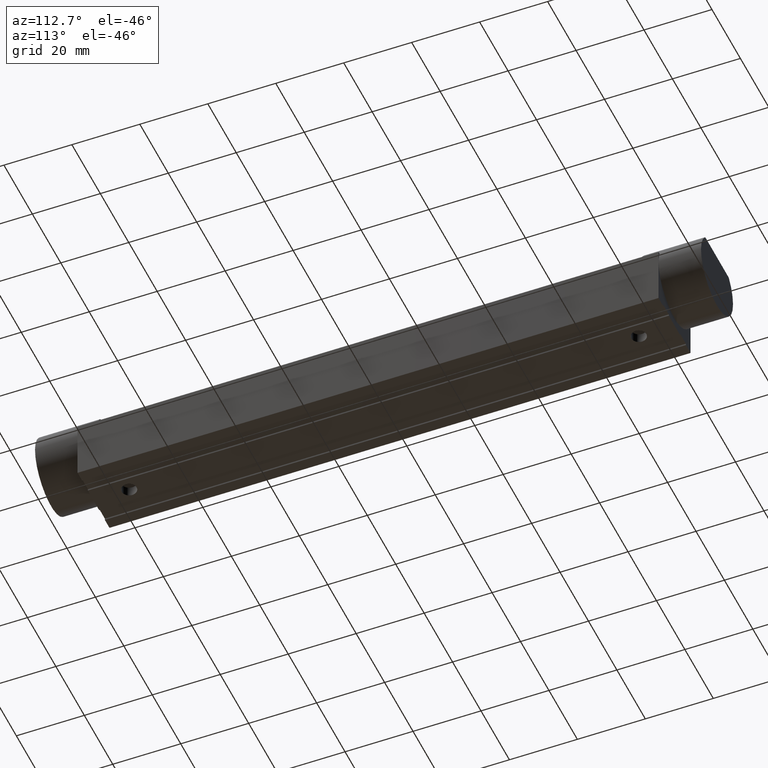
[diagram: clean part render]
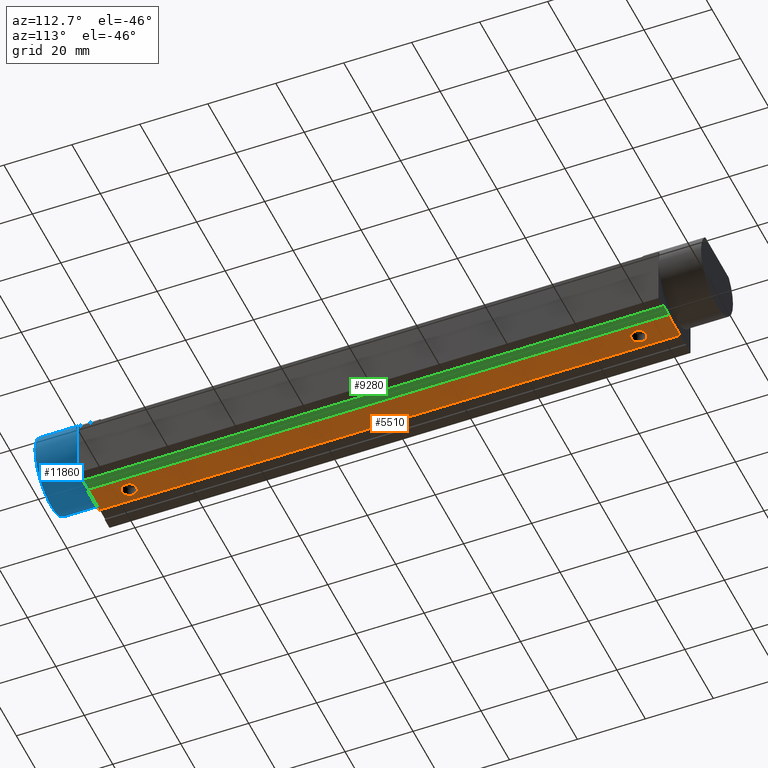
[diagram: same view with three faces highlighted in distinct colors, each labeled with its STEP entity id]
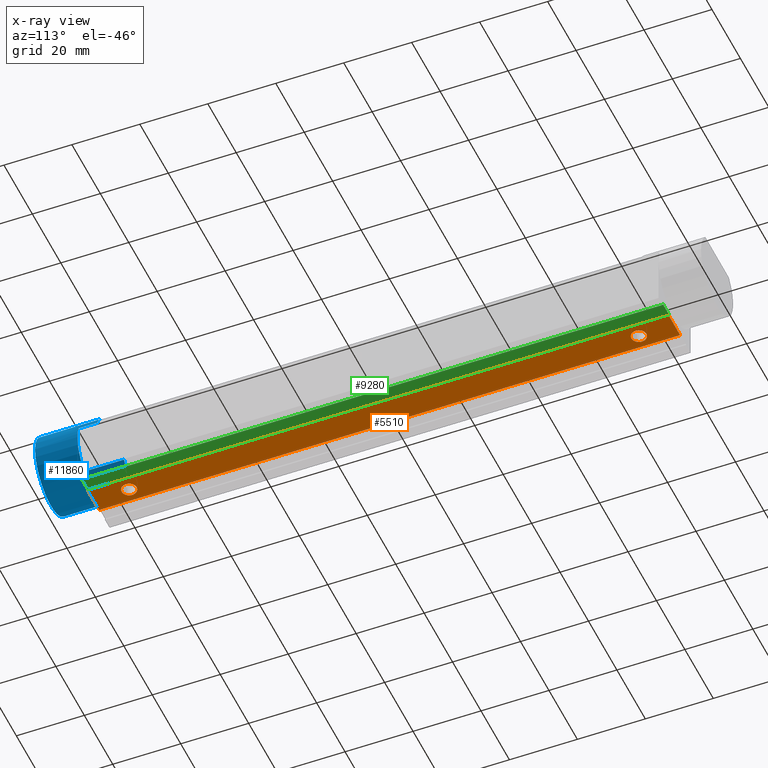
[diagram: x-ray of the same camera — body ghosted, the three highlighted faces saturated]
A machine part, auxiliary view with three faces highlighted in distinct colors.
The next image is the same camera in x-ray (body ghosted, the three faces saturated) — at least one of them is partly hidden behind the body in this view.
Their STEP definitions:

[orange] entity #5510 — the highlighted planar face has unit normal (-0, -0, 1).
#1150=CARTESIAN_POINT('',(183.5,-4.00000000000001,-4.));
#1160=VERTEX_POINT('',#1150);
#1190=CARTESIAN_POINT('',(183.5,-3.75,-4.));
#1200=DIRECTION('',(0.,1.,0.));
#1210=VECTOR('',#1200,1.);
#1220=LINE('',#1190,#1210);
#1230=CARTESIAN_POINT('',(183.5,4.,-4.));
#1240=VERTEX_POINT('',#1230);
#1250=EDGE_CURVE('',#1160,#1240,#1220,.T.);
#4910=CARTESIAN_POINT('',(183.5,-4.00000000000001,-4.));
#4920=DIRECTION('',(-0.,-0.,-1.));
#4930=DIRECTION('',(0.,-1.,0.));
#4940=AXIS2_PLACEMENT_3D('',#4910,#4920,#4930);
#4950=PLANE('',#4940);
#4960=ORIENTED_EDGE('',*,*,#1250,.T.);
#4970=CARTESIAN_POINT('',(0.,-4.00000000000001,-4.));
#4980=DIRECTION('',(-1.,0.,0.));
#4990=VECTOR('',#4980,1.);
#5000=LINE('',#4970,#4990);
#5010=CARTESIAN_POINT('',(12.5,-4.00000000000001,-4.));
#5020=VERTEX_POINT('',#5010);
#5030=EDGE_CURVE('',#1160,#5020,#5000,.T.);
#5040=ORIENTED_EDGE('',*,*,#5030,.F.);
#5050=CARTESIAN_POINT('',(12.5,0.,-4.));
#5060=DIRECTION('',(0.,-1.,0.));
#5070=VECTOR('',#5060,1.);
#5080=LINE('',#5050,#5070);
#5090=CARTESIAN_POINT('',(12.5,4.,-4.));
#5100=VERTEX_POINT('',#5090);
#5110=EDGE_CURVE('',#5100,#5020,#5080,.T.);
#5120=ORIENTED_EDGE('',*,*,#5110,.T.);
#5130=CARTESIAN_POINT('',(0.,4.,-4.));
#5140=DIRECTION('',(-1.,0.,0.));
#5150=VECTOR('',#5140,1.);
#5160=LINE('',#5130,#5150);
#5170=EDGE_CURVE('',#1240,#5100,#5160,.T.);
#5180=ORIENTED_EDGE('',*,*,#5170,.T.);
#5190=EDGE_LOOP('',(#5180,#5120,#5040,#4960));
#5200=FACE_OUTER_BOUND('',#5190,.T.);
#5210=CARTESIAN_POINT('',(23.0000000000001,-3.46944695195361E-15,-4.));
#5220=DIRECTION('',(0.,0.,-1.));
#5230=DIRECTION('',(-1.,-2.3970724395316E-16,0.));
#5240=AXIS2_PLACEMENT_3D('',#5210,#5220,#5230);
#5250=CIRCLE('',#5240,2.2);
#5260=CARTESIAN_POINT('',(25.2000000000001,-2.67266871944424E-15,-4.));
#5270=VERTEX_POINT('',#5260);
#5280=CARTESIAN_POINT('',(20.8000000000001,-3.99680288865056E-15,-4.));
#5290=VERTEX_POINT('',#5280);
#5300=EDGE_CURVE('',#5270,#5290,#5250,.T.);
#5310=ORIENTED_EDGE('',*,*,#5300,.T.);
#5320=EDGE_CURVE('',#5290,#5270,#5250,.T.);
#5330=ORIENTED_EDGE('',*,*,#5320,.T.);
#5340=EDGE_LOOP('',(#5330,#5310));
#5350=FACE_BOUND('',#5340,.T.);
#5360=CARTESIAN_POINT('',(173.,-3.46944695195361E-15,-4.));
#5370=DIRECTION('',(0.,0.,-1.));
#5380=DIRECTION('',(1.,-3.78485122031329E-17,0.));
#5390=AXIS2_PLACEMENT_3D('',#5360,#5370,#5380);
#5400=CIRCLE('',#5390,2.2);
#5410=CARTESIAN_POINT('',(175.2,-3.5527136788005E-15,-4.));
#5420=VERTEX_POINT('',#5410);
#5430=CARTESIAN_POINT('',(170.8,-3.65560252091914E-15,-4.));
#5440=VERTEX_POINT('',#5430);
#5450=EDGE_CURVE('',#5420,#5440,#5400,.T.);
#5460=ORIENTED_EDGE('',*,*,#5450,.T.);
#5470=EDGE_CURVE('',#5440,#5420,#5400,.T.);
#5480=ORIENTED_EDGE('',*,*,#5470,.T.);
#5490=EDGE_LOOP('',(#5480,#5460));
#5500=FACE_BOUND('',#5490,.T.);
#5510=ADVANCED_FACE('',(#5200,#5350,#5500),#4950,.F.);

[blue] entity #11860 — the highlighted cylindrical surface (partial cylindrical patch) has radius 11.2492 mm, axis along (0, -1, 0).
#120=CARTESIAN_POINT('',(12.5,10.514041296652,-22.));
#130=VERTEX_POINT('',#120);
#160=CARTESIAN_POINT('',(13.7200045691454,10.514041296652,-22.));
#170=DIRECTION('',(-1.,0.,0.));
#180=VECTOR('',#170,1.);
#190=LINE('',#160,#180);
#200=CARTESIAN_POINT('',(18.0000000000001,10.514041296652,-22.));
#210=VERTEX_POINT('',#200);
#220=EDGE_CURVE('',#210,#130,#190,.T.);
#2440=CARTESIAN_POINT('',(12.5,0.,-18.));
#2450=DIRECTION('',(-1.,0.,0.));
#2460=DIRECTION('',(0.,0.,1.));
#2470=AXIS2_PLACEMENT_3D('',#2440,#2450,#2460);
#2480=CIRCLE('',#2470,11.2492250572074);
#2490=CARTESIAN_POINT('',(12.5,11.2492250572074,-18.));
#2500=VERTEX_POINT('',#2490);
#2510=EDGE_CURVE('',#2500,#130,#2480,.T.);
#3580=CARTESIAN_POINT('',(12.5,-11.2492250572074,-18.));
#3590=VERTEX_POINT('',#3580);
#6150=EDGE_CURVE('',#3590,#2500,#2480,.T.);
#6710=CARTESIAN_POINT('',(18.0000000000001,0.,-18.));
#6720=DIRECTION('',(1.,0.,0.));
#6730=DIRECTION('',(0.,4.7372778934549E-16,1.));
#6740=AXIS2_PLACEMENT_3D('',#6710,#6720,#6730);
#6750=CIRCLE('',#6740,11.2492250572074);
#6760=CARTESIAN_POINT('',(18.0000000000001,8.29004981596238,
-25.6039554467767));
#6770=VERTEX_POINT('',#6760);
#6780=EDGE_CURVE('',#6770,#210,#6750,.T.);
#6890=CARTESIAN_POINT('',(18.0000000000001,-8.29004981596239,
-25.6039554467767));
#6900=VERTEX_POINT('',#6890);
#6930=CARTESIAN_POINT('',(18.0000000000001,-10.514041296652,-22.));
#6940=VERTEX_POINT('',#6930);
#6950=EDGE_CURVE('',#6940,#6900,#6750,.T.);
#9860=CARTESIAN_POINT('',(1.77635683940025E-15,-8.29004981596239,
-25.6039554467767));
#9870=VERTEX_POINT('',#9860);
#9880=CARTESIAN_POINT('',(1.73472347597681E-15,8.29004981596238,
-25.6039554467767));
#9890=VERTEX_POINT('',#9880);
#9920=CARTESIAN_POINT('',(1.24344978758018E-14,-8.29004981596239,
-25.6039554467767));
#9930=DIRECTION('',(1.,0.,0.));
#9940=VECTOR('',#9930,1.);
#9950=LINE('',#9920,#9940);
#9960=EDGE_CURVE('',#9870,#6900,#9950,.T.);
#10080=CARTESIAN_POINT('',(18.0000000000001,8.29004981596238,
-25.6039554467767));
#10090=DIRECTION('',(-1.,0.,0.));
#10100=VECTOR('',#10090,1.);
#10110=LINE('',#10080,#10100);
#10120=EDGE_CURVE('',#6770,#9890,#10110,.T.);
#11250=CARTESIAN_POINT('',(12.5,-10.514041296652,-22.));
#11260=VERTEX_POINT('',#11250);
#11290=EDGE_CURVE('',#11260,#3590,#2480,.T.);
#11470=CARTESIAN_POINT('',(1.95399252334028E-14,0.,-18.));
#11480=DIRECTION('',(-1.,0.,0.));
#11490=DIRECTION('',(0.,-0.736944080485875,-0.675953713087537));
#11500=AXIS2_PLACEMENT_3D('',#11470,#11480,#11490);
#11510=CIRCLE('',#11500,11.2492250572074);
#11520=EDGE_CURVE('',#9870,#9890,#11510,.T.);
#11640=CARTESIAN_POINT('',(13.7200045691454,0.,-18.));
#11650=DIRECTION('',(-1.,0.,0.));
#11660=DIRECTION('',(0.,0.,1.));
#11670=AXIS2_PLACEMENT_3D('',#11640,#11650,#11660);
#11680=CYLINDRICAL_SURFACE('',#11670,11.2492250572074);
#11690=ORIENTED_EDGE('',*,*,#11520,.F.);
#11700=ORIENTED_EDGE('',*,*,#10120,.T.);
#11710=ORIENTED_EDGE('',*,*,#6780,.F.);
#11720=ORIENTED_EDGE('',*,*,#220,.F.);
#11730=ORIENTED_EDGE('',*,*,#2510,.T.);
#11740=ORIENTED_EDGE('',*,*,#6150,.T.);
#11750=ORIENTED_EDGE('',*,*,#11290,.T.);
#11760=CARTESIAN_POINT('',(13.7200045691454,-10.514041296652,-22.));
#11770=DIRECTION('',(-1.,0.,0.));
#11780=VECTOR('',#11770,1.);
#11790=LINE('',#11760,#11780);
#11800=EDGE_CURVE('',#6940,#11260,#11790,.T.);
#11810=ORIENTED_EDGE('',*,*,#11800,.T.);
#11820=ORIENTED_EDGE('',*,*,#6950,.F.);
#11830=ORIENTED_EDGE('',*,*,#9960,.T.);
#11840=EDGE_LOOP('',(#11830,#11820,#11810,#11750,#11740,#11730,#11720,
#11710,#11700,#11690));
#11850=FACE_OUTER_BOUND('',#11840,.T.);
#11860=ADVANCED_FACE('',(#11850),#11680,.T.);

[green] entity #9280 — the highlighted planar face has unit normal (-0, -0, 1).
#1310=CARTESIAN_POINT('',(183.5,4.,-4.50000000000001));
#1320=VERTEX_POINT('',#1310);
#1350=CARTESIAN_POINT('',(183.5,4.25,-4.50000000000001));
#1360=DIRECTION('',(0.,1.,0.));
#1370=VECTOR('',#1360,1.);
#1380=LINE('',#1350,#1370);
#1390=CARTESIAN_POINT('',(183.5,7.99999999999999,-4.50000000000001));
#1400=VERTEX_POINT('',#1390);
#1410=EDGE_CURVE('',#1320,#1400,#1380,.T.);
#5720=CARTESIAN_POINT('',(12.5,7.99999999999999,-4.50000000000001));
#5730=VERTEX_POINT('',#5720);
#5760=CARTESIAN_POINT('',(12.5,0.,-4.50000000000001));
#5770=DIRECTION('',(0.,-1.,0.));
#5780=VECTOR('',#5770,1.);
#5790=LINE('',#5760,#5780);
#5800=CARTESIAN_POINT('',(12.5,4.,-4.50000000000001));
#5810=VERTEX_POINT('',#5800);
#5820=EDGE_CURVE('',#5730,#5810,#5790,.T.);
#7340=CARTESIAN_POINT('',(0.,4.,-4.50000000000001));
#7350=DIRECTION('',(-1.,0.,0.));
#7360=VECTOR('',#7350,1.);
#7370=LINE('',#7340,#7360);
#7380=EDGE_CURVE('',#1320,#5810,#7370,.T.);
#8750=CARTESIAN_POINT('',(0.,7.99999999999999,-4.50000000000001));
#8760=DIRECTION('',(-1.,0.,0.));
#8770=VECTOR('',#8760,1.);
#8780=LINE('',#8750,#8770);
#8790=EDGE_CURVE('',#1400,#5730,#8780,.T.);
#9170=CARTESIAN_POINT('',(183.5,4.,-4.50000000000001));
#9180=DIRECTION('',(-0.,-0.,-1.));
#9190=DIRECTION('',(0.,-1.,0.));
#9200=AXIS2_PLACEMENT_3D('',#9170,#9180,#9190);
#9210=PLANE('',#9200);
#9220=ORIENTED_EDGE('',*,*,#1410,.T.);
#9230=ORIENTED_EDGE('',*,*,#7380,.F.);
#9240=ORIENTED_EDGE('',*,*,#5820,.T.);
#9250=ORIENTED_EDGE('',*,*,#8790,.T.);
#9260=EDGE_LOOP('',(#9250,#9240,#9230,#9220));
#9270=FACE_OUTER_BOUND('',#9260,.T.);
#9280=ADVANCED_FACE('',(#9270),#9210,.F.);